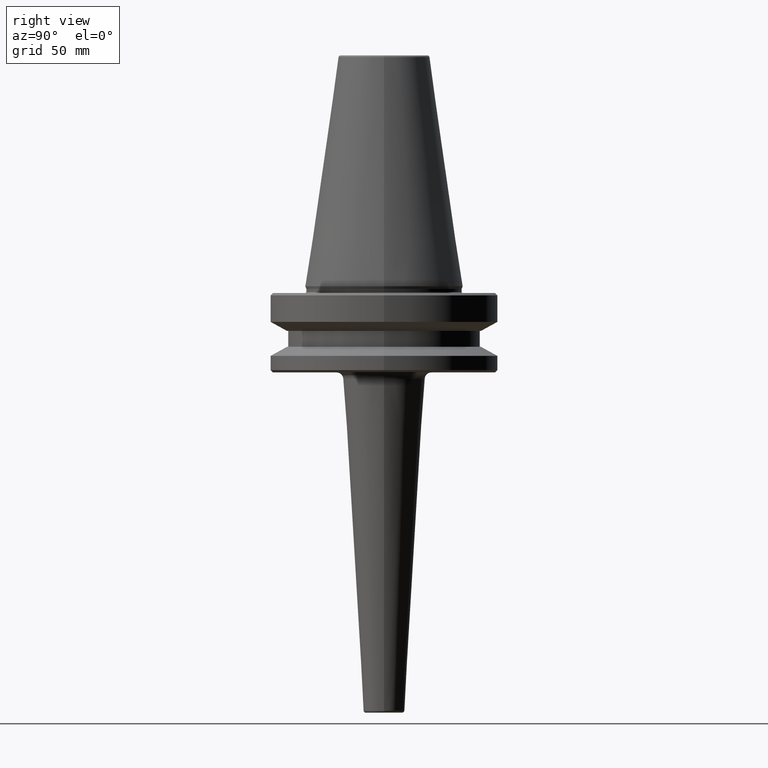
[diagram: clean part render]
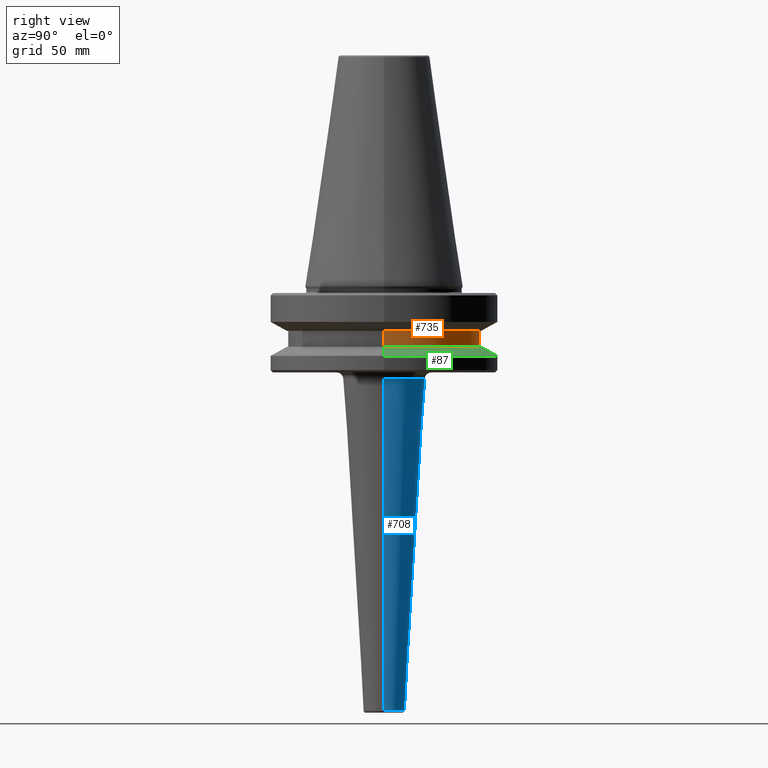
[diagram: same view with three faces highlighted in distinct colors, each labeled with its STEP entity id]
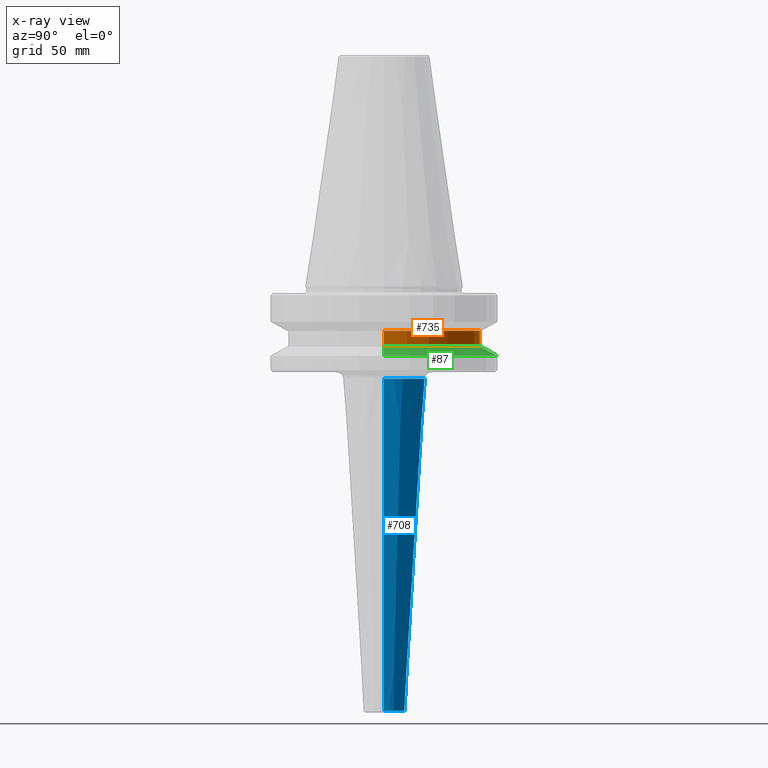
[diagram: x-ray of the same camera — body ghosted, the three highlighted faces saturated]
A machine part, right view with three faces highlighted in distinct colors.
The next image is the same camera in x-ray (body ghosted, the three faces saturated) — at least one of them is partly hidden behind the body in this view.
Their STEP definitions:

[orange] entity #735 — the highlighted cylindrical surface (partial cylindrical patch) has radius 42.5 mm, axis along (-0, -0, 1).
#27 = DIRECTION ( 'NONE',  ( -0.0000000000000000000, -0.0000000000000000000, 1.000000000000000000 ) ) ;
#81 = CARTESIAN_POINT ( 'NONE',  ( 42.50000000000000000, 0.0000000000000000000, -26.69999999999998900 ) ) ;
#92 = DIRECTION ( 'NONE',  ( -0.0000000000000000000, -0.0000000000000000000, 1.000000000000000000 ) ) ;
#178 = EDGE_CURVE ( 'NONE', #927, #805, #699, .T. ) ;
#181 = DIRECTION ( 'NONE',  ( -0.0000000000000000000, -0.0000000000000000000, 1.000000000000000000 ) ) ;
#220 = EDGE_CURVE ( 'NONE', #805, #737, #404, .T. ) ;
#224 = ORIENTED_EDGE ( 'NONE', *, *, #220, .F. ) ;
#230 = EDGE_CURVE ( 'NONE', #615, #737, #628, .T. ) ;
#245 = EDGE_CURVE ( 'NONE', #927, #615, #787, .T. ) ;
#253 = DIRECTION ( 'NONE',  ( 1.000000000000000000, 0.0000000000000000000, 0.0000000000000000000 ) ) ;
#255 = CARTESIAN_POINT ( 'NONE',  ( 42.50000000000000000, 0.0000000000000000000, -19.70000000000001000 ) ) ;
#294 = EDGE_LOOP ( 'NONE', ( #796, #455, #224, #535 ) ) ;
#321 = CARTESIAN_POINT ( 'NONE',  ( 0.0000000000000000000, 0.0000000000000000000, -19.70000000000001000 ) ) ;
#349 = DIRECTION ( 'NONE',  ( 1.000000000000000000, 0.0000000000000000000, 0.0000000000000000000 ) ) ;
#372 = VECTOR ( 'NONE', #92, 1000.000000000000000 ) ;
#404 = CIRCLE ( 'NONE', #593, 42.50000000000000000 ) ;
#437 = CYLINDRICAL_SURFACE ( 'NONE', #694, 42.50000000000000000 ) ;
#450 = AXIS2_PLACEMENT_3D ( 'NONE', #656, #27, #253 ) ;
#455 = ORIENTED_EDGE ( 'NONE', *, *, #230, .T. ) ;
#461 = FACE_OUTER_BOUND ( 'NONE', #294, .T. ) ;
#478 = DIRECTION ( 'NONE',  ( 1.000000000000000000, 0.0000000000000000000, 0.0000000000000000000 ) ) ;
#493 = CARTESIAN_POINT ( 'NONE',  ( -42.50000000000000000, 5.204748896376250900E-015, -26.69999999999998900 ) ) ;
#535 = ORIENTED_EDGE ( 'NONE', *, *, #178, .F. ) ;
#582 = CARTESIAN_POINT ( 'NONE',  ( -42.50000000000000000, 5.204748896376250900E-015, -19.70000000000001000 ) ) ;
#593 = AXIS2_PLACEMENT_3D ( 'NONE', #321, #820, #478 ) ;
#615 = VERTEX_POINT ( 'NONE', #493 ) ;
#628 = LINE ( 'NONE', #674, #372 ) ;
#648 = CARTESIAN_POINT ( 'NONE',  ( 42.50000000000000000, 0.0000000000000000000, 124.5046326327850600 ) ) ;
#656 = CARTESIAN_POINT ( 'NONE',  ( 0.0000000000000000000, 0.0000000000000000000, -26.69999999999998900 ) ) ;
#674 = CARTESIAN_POINT ( 'NONE',  ( -42.50000000000000000, 5.204748896376250900E-015, 124.5046326327850600 ) ) ;
#676 = VECTOR ( 'NONE', #695, 1000.000000000000000 ) ;
#694 = AXIS2_PLACEMENT_3D ( 'NONE', #733, #181, #349 ) ;
#695 = DIRECTION ( 'NONE',  ( -0.0000000000000000000, -0.0000000000000000000, 1.000000000000000000 ) ) ;
#699 = LINE ( 'NONE', #648, #676 ) ;
#733 = CARTESIAN_POINT ( 'NONE',  ( 0.0000000000000000000, 0.0000000000000000000, 124.5046326327850600 ) ) ;
#735 = ADVANCED_FACE ( 'NONE', ( #461 ), #437, .T. ) ;
#737 = VERTEX_POINT ( 'NONE', #582 ) ;
#787 = CIRCLE ( 'NONE', #450, 42.50000000000000000 ) ;
#796 = ORIENTED_EDGE ( 'NONE', *, *, #245, .T. ) ;
#805 = VERTEX_POINT ( 'NONE', #255 ) ;
#820 = DIRECTION ( 'NONE',  ( -0.0000000000000000000, -0.0000000000000000000, 1.000000000000000000 ) ) ;
#927 = VERTEX_POINT ( 'NONE', #81 ) ;

[blue] entity #708 — the highlighted conical surface has half-angle 3.529 deg.
#10 = VERTEX_POINT ( 'NONE', #782 ) ;
#28 = CARTESIAN_POINT ( 'NONE',  ( 18.25000000000003600, 0.0000000000000000000, -38.00000000000000700 ) ) ;
#36 = ORIENTED_EDGE ( 'NONE', *, *, #825, .T. ) ;
#40 = VECTOR ( 'NONE', #516, 1000.000000000000000 ) ;
#65 = LINE ( 'NONE', #687, #262 ) ;
#82 = FACE_OUTER_BOUND ( 'NONE', #907, .T. ) ;
#101 = AXIS2_PLACEMENT_3D ( 'NONE', #683, #249, #160 ) ;
#122 = ORIENTED_EDGE ( 'NONE', *, *, #205, .T. ) ;
#132 = VERTEX_POINT ( 'NONE', #659 ) ;
#160 = DIRECTION ( 'NONE',  ( 1.000000000000000000, 0.0000000000000000000, 0.0000000000000000000 ) ) ;
#205 = EDGE_CURVE ( 'NONE', #644, #581, #65, .T. ) ;
#229 = CARTESIAN_POINT ( 'NONE',  ( 0.0000000000000000000, 0.0000000000000000000, -40.81535075687303800 ) ) ;
#249 = DIRECTION ( 'NONE',  ( -0.0000000000000000000, -0.0000000000000000000, 1.000000000000000000 ) ) ;
#262 = VECTOR ( 'NONE', #570, 1000.000000000000000 ) ;
#270 = DIRECTION ( 'NONE',  ( 1.000000000000000000, 0.0000000000000000000, 0.0000000000000000000 ) ) ;
#281 = ORIENTED_EDGE ( 'NONE', *, *, #709, .F. ) ;
#290 = ORIENTED_EDGE ( 'NONE', *, *, #661, .T. ) ;
#304 = CIRCLE ( 'NONE', #345, 18.07638670332619700 ) ;
#313 = CARTESIAN_POINT ( 'NONE',  ( -18.07638670332620000, 2.213718911637821000E-015, -40.81535075687303800 ) ) ;
#345 = AXIS2_PLACEMENT_3D ( 'NONE', #229, #697, #402 ) ;
#399 = CARTESIAN_POINT ( 'NONE',  ( -9.057871098891354200, 1.109269284834661600E-015, -187.0615497477090200 ) ) ;
#402 = DIRECTION ( 'NONE',  ( -1.000000000000000000, 0.0000000000000000000, 0.0000000000000000000 ) ) ;
#516 = DIRECTION ( 'NONE',  ( 0.06154974770898888300, 0.0000000000000000000, 0.9981040169025269200 ) ) ;
#570 = DIRECTION ( 'NONE',  ( -0.06154974770898888300, 7.537670152014037600E-018, 0.9981040169025269200 ) ) ;
#581 = VERTEX_POINT ( 'NONE', #313 ) ;
#644 = VERTEX_POINT ( 'NONE', #399 ) ;
#650 = CONICAL_SURFACE ( 'NONE', #894, 18.25000000000003600, 0.06158867632756011300 ) ;
#659 = CARTESIAN_POINT ( 'NONE',  ( 18.07638670332620000, 0.0000000000000000000, -40.81535075687303800 ) ) ;
#661 = EDGE_CURVE ( 'NONE', #581, #132, #304, .T. ) ;
#669 = LINE ( 'NONE', #28, #40 ) ;
#683 = CARTESIAN_POINT ( 'NONE',  ( 0.0000000000000000000, 0.0000000000000000000, -187.0615497477090200 ) ) ;
#687 = CARTESIAN_POINT ( 'NONE',  ( -18.25000000000003600, 2.234980408443924300E-015, -38.00000000000000700 ) ) ;
#697 = DIRECTION ( 'NONE',  ( 0.0000000000000000000, 0.0000000000000000000, -1.000000000000000000 ) ) ;
#708 = ADVANCED_FACE ( 'NONE', ( #82 ), #650, .T. ) ;
#709 = EDGE_CURVE ( 'NONE', #10, #132, #669, .T. ) ;
#782 = CARTESIAN_POINT ( 'NONE',  ( 9.057871098891354200, 0.0000000000000000000, -187.0615497477090200 ) ) ;
#821 = DIRECTION ( 'NONE',  ( -0.0000000000000000000, -0.0000000000000000000, 1.000000000000000000 ) ) ;
#825 = EDGE_CURVE ( 'NONE', #10, #644, #920, .T. ) ;
#827 = CARTESIAN_POINT ( 'NONE',  ( 0.0000000000000000000, 0.0000000000000000000, -38.00000000000000700 ) ) ;
#894 = AXIS2_PLACEMENT_3D ( 'NONE', #827, #821, #270 ) ;
#907 = EDGE_LOOP ( 'NONE', ( #36, #122, #290, #281 ) ) ;
#920 = CIRCLE ( 'NONE', #101, 9.057871098891356000 ) ;

[green] entity #87 — the highlighted conical surface has half-angle 60 deg.
#86 = VECTOR ( 'NONE', #451, 1000.000000000000000 ) ;
#87 = ADVANCED_FACE ( 'NONE', ( #576 ), #109, .T. ) ;
#109 = CONICAL_SURFACE ( 'NONE', #1000, 50.00000000000000000, 1.047197551196597200 ) ;
#115 = EDGE_CURVE ( 'NONE', #414, #913, #673, .T. ) ;
#117 = EDGE_CURVE ( 'NONE', #152, #913, #546, .T. ) ;
#126 = EDGE_CURVE ( 'NONE', #900, #414, #912, .T. ) ;
#137 = EDGE_CURVE ( 'NONE', #900, #152, #505, .T. ) ;
#145 = CARTESIAN_POINT ( 'NONE',  ( -50.00000000000000000, 0.0000000000000000000, -30.69977999677324500 ) ) ;
#152 = VERTEX_POINT ( 'NONE', #952 ) ;
#164 = CARTESIAN_POINT ( 'NONE',  ( 0.0000000000000000000, 0.0000000000000000000, -26.69999999999998900 ) ) ;
#191 = EDGE_LOOP ( 'NONE', ( #341, #322, #788, #781 ) ) ;
#217 = CARTESIAN_POINT ( 'NONE',  ( 0.0000000000000000000, 0.0000000000000000000, -30.69977999677324500 ) ) ;
#273 = CARTESIAN_POINT ( 'NONE',  ( -43.07217782649105000, 0.0000000000000000000, -26.69999999999998900 ) ) ;
#275 = CARTESIAN_POINT ( 'NONE',  ( 50.00000000000000000, 6.123233995736766100E-015, -30.69977999677324500 ) ) ;
#280 = CARTESIAN_POINT ( 'NONE',  ( -50.00000000000000000, 6.123233995736766100E-015, -30.69977999677324500 ) ) ;
#322 = ORIENTED_EDGE ( 'NONE', *, *, #137, .T. ) ;
#341 = ORIENTED_EDGE ( 'NONE', *, *, #126, .F. ) ;
#367 = DIRECTION ( 'NONE',  ( 1.000000000000000000, 0.0000000000000000000, 0.0000000000000000000 ) ) ;
#381 = CARTESIAN_POINT ( 'NONE',  ( 0.0000000000000000000, 0.0000000000000000000, -30.69977999677324500 ) ) ;
#414 = VERTEX_POINT ( 'NONE', #273 ) ;
#425 = AXIS2_PLACEMENT_3D ( 'NONE', #381, #957, #595 ) ;
#433 = AXIS2_PLACEMENT_3D ( 'NONE', #164, #830, #367 ) ;
#451 = DIRECTION ( 'NONE',  ( -0.8660254037844383700, 0.0000000000000000000, -0.5000000000000004400 ) ) ;
#505 = LINE ( 'NONE', #275, #725 ) ;
#546 = CIRCLE ( 'NONE', #425, 50.00000000000000000 ) ;
#576 = FACE_OUTER_BOUND ( 'NONE', #191, .T. ) ;
#590 = DIRECTION ( 'NONE',  ( 0.0000000000000000000, 0.0000000000000000000, -1.000000000000000000 ) ) ;
#595 = DIRECTION ( 'NONE',  ( 1.000000000000000000, 0.0000000000000000000, 0.0000000000000000000 ) ) ;
#673 = LINE ( 'NONE', #145, #86 ) ;
#725 = VECTOR ( 'NONE', #946, 1000.000000000000000 ) ;
#781 = ORIENTED_EDGE ( 'NONE', *, *, #115, .F. ) ;
#788 = ORIENTED_EDGE ( 'NONE', *, *, #117, .T. ) ;
#830 = DIRECTION ( 'NONE',  ( -0.0000000000000000000, -0.0000000000000000000, 1.000000000000000000 ) ) ;
#887 = CARTESIAN_POINT ( 'NONE',  ( 43.07217782649105000, 5.699027233244276800E-015, -26.69999999999998900 ) ) ;
#900 = VERTEX_POINT ( 'NONE', #887 ) ;
#912 = CIRCLE ( 'NONE', #433, 43.07217782649105000 ) ;
#913 = VERTEX_POINT ( 'NONE', #280 ) ;
#946 = DIRECTION ( 'NONE',  ( 0.8660254037844383700, 1.060575238724906500E-016, -0.5000000000000004400 ) ) ;
#952 = CARTESIAN_POINT ( 'NONE',  ( 50.00000000000000000, 0.0000000000000000000, -30.69977999677324500 ) ) ;
#957 = DIRECTION ( 'NONE',  ( -0.0000000000000000000, -0.0000000000000000000, 1.000000000000000000 ) ) ;
#962 = DIRECTION ( 'NONE',  ( -1.000000000000000000, 0.0000000000000000000, 0.0000000000000000000 ) ) ;
#1000 = AXIS2_PLACEMENT_3D ( 'NONE', #217, #590, #962 ) ;